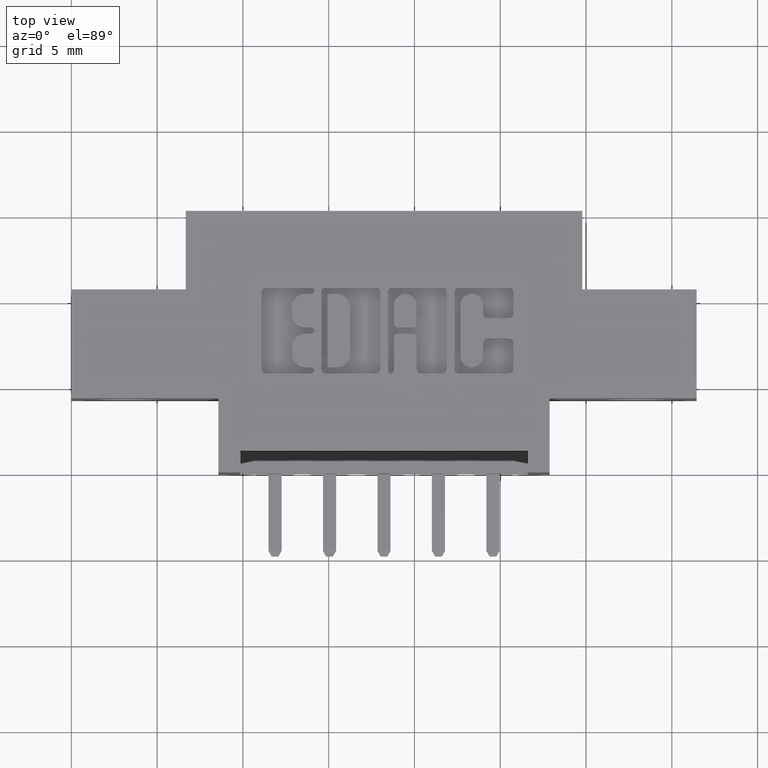
[diagram: clean part render]
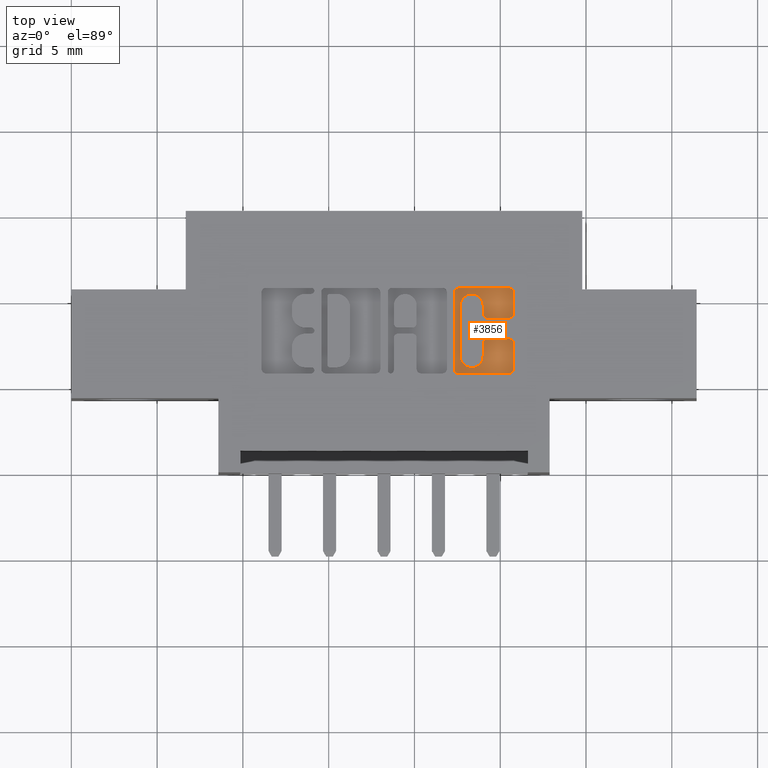
[diagram: same view with one face highlighted and labeled with its STEP entity id]
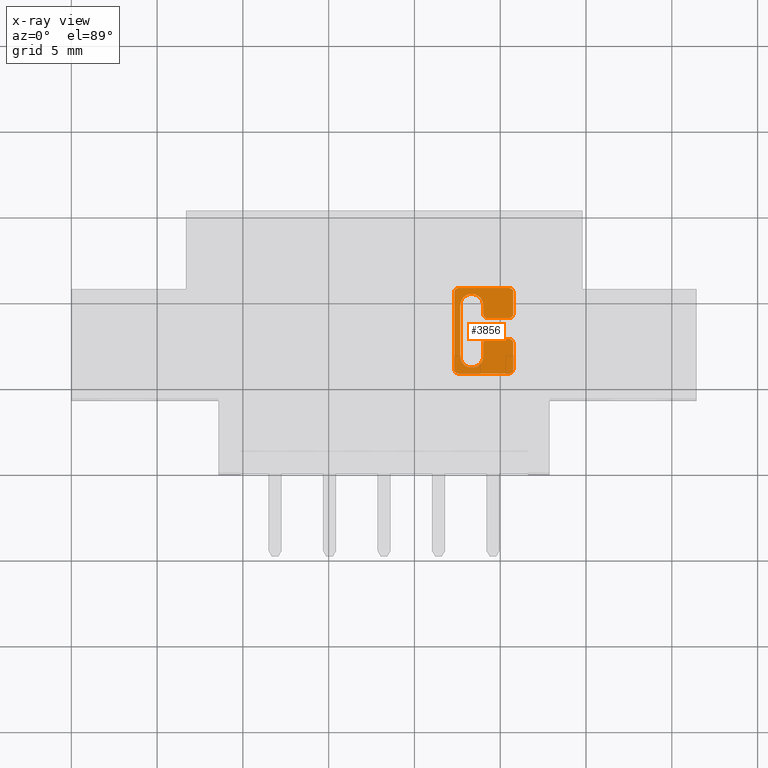
[diagram: x-ray of the same camera — body ghosted, the highlighted face saturated]
A machine part, top view. The second image highlights one B-rep face of the part: STEP entity #3856.
The next image is the same camera in x-ray: the body ghosted, the highlighted face saturated — about 0% of this face is hidden behind the body in this view.
In plain terms, the highlighted planar face has unit normal (0, 0, 1).
Its self-contained STEP definition (entity closure, byte-faithful):
#5 = DIRECTION ( 'NONE',  ( -0.0000000000000000000, 0.0000000000000000000, 1.000000000000000000 ) ) ;
#7 = ORIENTED_EDGE ( 'NONE', *, *, #873, .T. ) ;
#27 = CARTESIAN_POINT ( 'NONE',  ( 1.004362961706156687, 0.3063502266127573481, -0.01000000000000000021 ) ) ;
#36 = DIRECTION ( 'NONE',  ( -0.0000000000000000000, 0.0000000000000000000, 1.000000000000000000 ) ) ;
#45 = DIRECTION ( 'NONE',  ( -0.0000000000000000000, 0.0000000000000000000, 1.000000000000000000 ) ) ;
#63 = EDGE_CURVE ( 'NONE', #8338, #3215, #554, .T. ) ;
#123 = AXIS2_PLACEMENT_3D ( 'NONE', #8743, #36, #2972 ) ;
#143 = EDGE_CURVE ( 'NONE', #9423, #1539, #3089, .T. ) ;
#191 = CARTESIAN_POINT ( 'NONE',  ( 0.9547938271769774721, 0.3637718973050450000, -0.01000000000000000021 ) ) ;
#276 = LINE ( 'NONE', #858, #2595 ) ;
#335 = DIRECTION ( 'NONE',  ( 1.000000000000000000, 0.0000000000000000000, 0.0000000000000000000 ) ) ;
#366 = DIRECTION ( 'NONE',  ( -1.000000000000000000, 0.0000000000000000000, 0.0000000000000000000 ) ) ;
#446 = CIRCLE ( 'NONE', #123, 0.02625691779517367111 ) ;
#456 = CARTESIAN_POINT ( 'NONE',  ( 0.8924643213828185040, 0.0000000000000000000, -0.01000000000000000021 ) ) ;
#502 = EDGE_CURVE ( 'NONE', #9264, #4514, #6489, .T. ) ;
#517 = CARTESIAN_POINT ( 'NONE',  ( 0.0000000000000000000, 0.4231567020380508359, -0.01000000000000000021 ) ) ;
#546 = ORIENTED_EDGE ( 'NONE', *, *, #2263, .T. ) ;
#554 = LINE ( 'NONE', #2767, #5394 ) ;
#659 = ORIENTED_EDGE ( 'NONE', *, *, #3372, .T. ) ;
#761 = DIRECTION ( 'NONE',  ( 0.0000000000000000000, -1.000000000000000000, 0.0000000000000000000 ) ) ;
#808 = ORIENTED_EDGE ( 'NONE', *, *, #4297, .T. ) ;
#858 = CARTESIAN_POINT ( 'NONE',  ( 0.0000000000000000000, 0.3063502266127573481, -0.01000000000000000021 ) ) ;
#873 = EDGE_CURVE ( 'NONE', #2397, #1725, #9014, .T. ) ;
#934 = CARTESIAN_POINT ( 'NONE',  ( 1.014178631909972150, 0.3637718973050384497, -0.01000000000000000021 ) ) ;
#949 = DIRECTION ( 'NONE',  ( -1.000000000000000000, 0.0000000000000000000, 0.0000000000000000000 ) ) ;
#1036 = DIRECTION ( 'NONE',  ( 1.000000000000000000, 0.0000000000000000000, 0.0000000000000000000 ) ) ;
#1070 = DIRECTION ( 'NONE',  ( -0.0000000000000000000, 0.0000000000000000000, 1.000000000000000000 ) ) ;
#1111 = VECTOR ( 'NONE', #1036, 39.37007874015748143 ) ;
#1215 = AXIS2_PLACEMENT_3D ( 'NONE', #3023, #5, #6010 ) ;
#1271 = LINE ( 'NONE', #456, #7351 ) ;
#1353 = AXIS2_PLACEMENT_3D ( 'NONE', #191, #6003, #335 ) ;
#1482 = CARTESIAN_POINT ( 'NONE',  ( 0.9449781569731791064, 0.0000000000000000000, -0.01000000000000000021 ) ) ;
#1539 = VERTEX_POINT ( 'NONE', #7838 ) ;
#1544 = EDGE_CURVE ( 'NONE', #9423, #9283, #1271, .T. ) ;
#1567 = DIRECTION ( 'NONE',  ( -0.0000000000000000000, 0.0000000000000000000, 1.000000000000000000 ) ) ;
#1590 = ORIENTED_EDGE ( 'NONE', *, *, #8721, .T. ) ;
#1666 = VECTOR ( 'NONE', #761, 39.37007874015748143 ) ;
#1685 = ORIENTED_EDGE ( 'NONE', *, *, #63, .T. ) ;
#1701 = ORIENTED_EDGE ( 'NONE', *, *, #6577, .T. ) ;
#1725 = VERTEX_POINT ( 'NONE', #6890 ) ;
#1810 = VECTOR ( 'NONE', #5681, 39.37007874015748143 ) ;
#1828 = AXIS2_PLACEMENT_3D ( 'NONE', #8053, #6471, #7846 ) ;
#1885 = VERTEX_POINT ( 'NONE', #2612 ) ;
#1939 = LINE ( 'NONE', #8544, #7653 ) ;
#2012 = ORIENTED_EDGE ( 'NONE', *, *, #502, .T. ) ;
#2080 = DIRECTION ( 'NONE',  ( 1.000000000000000000, 0.0000000000000000000, 0.0000000000000000000 ) ) ;
#2180 = DIRECTION ( 'NONE',  ( -0.0000000000000000000, 0.0000000000000000000, 1.000000000000000000 ) ) ;
#2263 = EDGE_CURVE ( 'NONE', #3923, #2397, #9450, .T. ) ;
#2300 = VERTEX_POINT ( 'NONE', #27 ) ;
#2387 = CARTESIAN_POINT ( 'NONE',  ( 0.8787223830974586480, 0.0000000000000000000, -0.01000000000000000021 ) ) ;
#2397 = VERTEX_POINT ( 'NONE', #9058 ) ;
#2463 = ORIENTED_EDGE ( 'NONE', *, *, #8442, .T. ) ;
#2577 = ORIENTED_EDGE ( 'NONE', *, *, #4014, .T. ) ;
#2595 = VECTOR ( 'NONE', #949, 39.37007874015748143 ) ;
#2612 = CARTESIAN_POINT ( 'NONE',  ( 0.9547938271769671470, 0.3063502266127573481, -0.01000000000000000021 ) ) ;
#2767 = CARTESIAN_POINT ( 'NONE',  ( 0.0000000000000000000, 0.3539562271012334227, -0.01000000000000000021 ) ) ;
#2812 = AXIS2_PLACEMENT_3D ( 'NONE', #6977, #1070, #5515 ) ;
#2937 = AXIS2_PLACEMENT_3D ( 'NONE', #7777, #5651, #8646 ) ;
#2972 = DIRECTION ( 'NONE',  ( 1.000000000000000000, 0.0000000000000000000, 0.0000000000000000000 ) ) ;
#3023 = CARTESIAN_POINT ( 'NONE',  ( 1.004362961706134483, 0.2366589681657897681, -0.01000000000000000021 ) ) ;
#3089 = CIRCLE ( 'NONE', #2812, 0.02625691779518022489 ) ;
#3173 = VERTEX_POINT ( 'NONE', #9489 ) ;
#3192 = ORIENTED_EDGE ( 'NONE', *, *, #5715, .T. ) ;
#3215 = VERTEX_POINT ( 'NONE', #9531 ) ;
#3372 = EDGE_CURVE ( 'NONE', #5461, #3173, #4754, .T. ) ;
#3526 = EDGE_LOOP ( 'NONE', ( #1685, #4196, #2463, #2577, #3961, #546, #7, #7015, #659, #1701, #2012, #7200, #1590, #3192, #9030, #3882, #8415, #5668, #808, #8500 ) ) ;
#3777 = CIRCLE ( 'NONE', #5759, 0.009815670203787086462 ) ;
#3802 = DIRECTION ( 'NONE',  ( -0.0000000000000000000, 0.0000000000000000000, 1.000000000000000000 ) ) ;
#3856 = ADVANCED_FACE ( 'NONE', ( #8758 ), #8041, .T. ) ;
#3882 = ORIENTED_EDGE ( 'NONE', *, *, #143, .F. ) ;
#3923 = VERTEX_POINT ( 'NONE', #7509 ) ;
#3938 = EDGE_CURVE ( 'NONE', #4514, #2300, #3777, .T. ) ;
#3961 = ORIENTED_EDGE ( 'NONE', *, *, #9156, .T. ) ;
#4014 = EDGE_CURVE ( 'NONE', #9505, #6274, #5302, .T. ) ;
#4196 = ORIENTED_EDGE ( 'NONE', *, *, #4761, .T. ) ;
#4206 = DIRECTION ( 'NONE',  ( 0.0000000000000000000, 1.000000000000000000, -0.0000000000000000000 ) ) ;
#4297 = EDGE_CURVE ( 'NONE', #9293, #7510, #5871, .T. ) ;
#4310 = CARTESIAN_POINT ( 'NONE',  ( 0.8924643213828185040, 0.2668421540424528171, -0.01000000000000000021 ) ) ;
#4429 = VECTOR ( 'NONE', #366, 39.37007874015748143 ) ;
#4514 = VERTEX_POINT ( 'NONE', #4656 ) ;
#4525 = CARTESIAN_POINT ( 'NONE',  ( 0.9449781569731660058, 0.3831578454992597416, -0.01000000000000000021 ) ) ;
#4656 = CARTESIAN_POINT ( 'NONE',  ( 1.014178631909940176, 0.2965345564089702513, -0.01000000000000000021 ) ) ;
#4754 = LINE ( 'NONE', #6231, #1111 ) ;
#4761 = EDGE_CURVE ( 'NONE', #3215, #8226, #4983, .T. ) ;
#4983 = CIRCLE ( 'NONE', #8718, 0.009815670203804980135 ) ;
#5090 = DIRECTION ( 'NONE',  ( 1.000000000000000000, 0.0000000000000000000, 0.0000000000000000000 ) ) ;
#5300 = DIRECTION ( 'NONE',  ( 0.0000000000000000000, -1.000000000000000000, 0.0000000000000000000 ) ) ;
#5302 = CIRCLE ( 'NONE', #8432, 0.009815670203840083999 ) ;
#5340 = CARTESIAN_POINT ( 'NONE',  ( 1.014178631909940176, 0.0000000000000000000, -0.01000000000000000021 ) ) ;
#5370 = CARTESIAN_POINT ( 'NONE',  ( 0.9547938271769774721, 0.3539562271012334227, -0.01000000000000000021 ) ) ;
#5394 = VECTOR ( 'NONE', #8664, 39.37007874015748143 ) ;
#5461 = VERTEX_POINT ( 'NONE', #8709 ) ;
#5515 = DIRECTION ( 'NONE',  ( 1.000000000000000000, 0.0000000000000000000, 0.0000000000000000000 ) ) ;
#5651 = DIRECTION ( 'NONE',  ( -0.0000000000000000000, 0.0000000000000000000, 1.000000000000000000 ) ) ;
#5668 = ORIENTED_EDGE ( 'NONE', *, *, #8538, .F. ) ;
#5681 = DIRECTION ( 'NONE',  ( 0.0000000000000000000, -1.000000000000000000, 0.0000000000000000000 ) ) ;
#5715 = EDGE_CURVE ( 'NONE', #1885, #7789, #7538, .T. ) ;
#5745 = LINE ( 'NONE', #1482, #1666 ) ;
#5759 = AXIS2_PLACEMENT_3D ( 'NONE', #9286, #3802, #9247 ) ;
#5786 = DIRECTION ( 'NONE',  ( 1.000000000000000000, 0.0000000000000000000, 0.0000000000000000000 ) ) ;
#5871 = LINE ( 'NONE', #8873, #1810 ) ;
#5905 = DIRECTION ( 'NONE',  ( 1.000000000000000000, 0.0000000000000000000, 0.0000000000000000000 ) ) ;
#5985 = CARTESIAN_POINT ( 'NONE',  ( 0.8885380533012994242, 0.4133410318342099488, -0.01000000000000000021 ) ) ;
#6003 = DIRECTION ( 'NONE',  ( -0.0000000000000000000, 0.0000000000000000000, 1.000000000000000000 ) ) ;
#6010 = DIRECTION ( 'NONE',  ( 1.000000000000000000, 0.0000000000000000000, 0.0000000000000000000 ) ) ;
#6034 = AXIS2_PLACEMENT_3D ( 'NONE', #5985, #1567, #5786 ) ;
#6067 = VECTOR ( 'NONE', #5300, 39.37007874015748143 ) ;
#6231 = CARTESIAN_POINT ( 'NONE',  ( 0.0000000000000000000, 0.2268432979619829926, -0.01000000000000000021 ) ) ;
#6274 = VERTEX_POINT ( 'NONE', #7761 ) ;
#6281 = CIRCLE ( 'NONE', #1828, 0.009815670203806754757 ) ;
#6436 = CIRCLE ( 'NONE', #1353, 0.009815670203811535655 ) ;
#6453 = CARTESIAN_POINT ( 'NONE',  ( 1.004362961706167123, 0.3637718973050384497, -0.01000000000000000021 ) ) ;
#6471 = DIRECTION ( 'NONE',  ( -0.0000000000000000000, 0.0000000000000000000, 1.000000000000000000 ) ) ;
#6472 = CARTESIAN_POINT ( 'NONE',  ( 0.9449781569731660058, 0.3637718973050450000, -0.01000000000000000021 ) ) ;
#6489 = LINE ( 'NONE', #5340, #8063 ) ;
#6577 = EDGE_CURVE ( 'NONE', #3173, #9264, #9071, .T. ) ;
#6647 = CARTESIAN_POINT ( 'NONE',  ( 1.004362961706132040, 0.4133410318342107259, -0.01000000000000000021 ) ) ;
#6890 = CARTESIAN_POINT ( 'NONE',  ( 0.8787223830974586480, 0.2366589681657897681, -0.01000000000000000021 ) ) ;
#6977 = CARTESIAN_POINT ( 'NONE',  ( 0.9187212391779988607, 0.2668421540424528171, -0.01000000000000000021 ) ) ;
#7015 = ORIENTED_EDGE ( 'NONE', *, *, #7119, .T. ) ;
#7119 = EDGE_CURVE ( 'NONE', #1725, #5461, #6281, .T. ) ;
#7200 = ORIENTED_EDGE ( 'NONE', *, *, #3938, .T. ) ;
#7351 = VECTOR ( 'NONE', #4206, 39.37007874015748143 ) ;
#7509 = CARTESIAN_POINT ( 'NONE',  ( 0.8885380533012994242, 0.4231567020380508359, -0.01000000000000000021 ) ) ;
#7510 = VERTEX_POINT ( 'NONE', #6472 ) ;
#7538 = CIRCLE ( 'NONE', #2937, 0.009815670203788042295 ) ;
#7608 = CARTESIAN_POINT ( 'NONE',  ( 0.8924643213828185040, 0.3831578459575294415, -0.01000000000000000021 ) ) ;
#7653 = VECTOR ( 'NONE', #7693, 39.37007874015748143 ) ;
#7693 = DIRECTION ( 'NONE',  ( 0.0000000000000000000, 1.000000000000000000, -0.0000000000000000000 ) ) ;
#7755 = LINE ( 'NONE', #517, #4429 ) ;
#7761 = CARTESIAN_POINT ( 'NONE',  ( 1.004362961706168456, 0.4231567020380508359, -0.01000000000000000021 ) ) ;
#7777 = CARTESIAN_POINT ( 'NONE',  ( 0.9547938271769671470, 0.2965345564089693631, -0.01000000000000000021 ) ) ;
#7789 = VERTEX_POINT ( 'NONE', #9369 ) ;
#7838 = CARTESIAN_POINT ( 'NONE',  ( 0.9449781569731791064, 0.2668421540424528171, -0.01000000000000000021 ) ) ;
#7846 = DIRECTION ( 'NONE',  ( 1.000000000000000000, 0.0000000000000000000, 0.0000000000000000000 ) ) ;
#8041 = PLANE ( 'NONE',  #9031 ) ;
#8052 = CARTESIAN_POINT ( 'NONE',  ( 1.014178631909940176, 0.2366589681657828015, -0.01000000000000000021 ) ) ;
#8053 = CARTESIAN_POINT ( 'NONE',  ( 0.8885380533012654514, 0.2366589681657897681, -0.01000000000000000021 ) ) ;
#8063 = VECTOR ( 'NONE', #8310, 39.37007874015748143 ) ;
#8226 = VERTEX_POINT ( 'NONE', #934 ) ;
#8310 = DIRECTION ( 'NONE',  ( 0.0000000000000000000, 1.000000000000000000, -0.0000000000000000000 ) ) ;
#8316 = EDGE_CURVE ( 'NONE', #7510, #8338, #6436, .T. ) ;
#8338 = VERTEX_POINT ( 'NONE', #5370 ) ;
#8415 = ORIENTED_EDGE ( 'NONE', *, *, #1544, .T. ) ;
#8432 = AXIS2_PLACEMENT_3D ( 'NONE', #6647, #45, #5905 ) ;
#8442 = EDGE_CURVE ( 'NONE', #8226, #9505, #1939, .T. ) ;
#8500 = ORIENTED_EDGE ( 'NONE', *, *, #8316, .T. ) ;
#8532 = EDGE_CURVE ( 'NONE', #7789, #1539, #5745, .T. ) ;
#8538 = EDGE_CURVE ( 'NONE', #9293, #9283, #446, .T. ) ;
#8544 = CARTESIAN_POINT ( 'NONE',  ( 1.014178631909972150, 0.0000000000000000000, -0.01000000000000000021 ) ) ;
#8646 = DIRECTION ( 'NONE',  ( 1.000000000000000000, 0.0000000000000000000, 0.0000000000000000000 ) ) ;
#8664 = DIRECTION ( 'NONE',  ( 1.000000000000000000, 0.0000000000000000000, 0.0000000000000000000 ) ) ;
#8709 = CARTESIAN_POINT ( 'NONE',  ( 0.8885380533012654514, 0.2268432979619829926, -0.01000000000000000021 ) ) ;
#8718 = AXIS2_PLACEMENT_3D ( 'NONE', #6453, #9410, #2080 ) ;
#8721 = EDGE_CURVE ( 'NONE', #2300, #1885, #276, .T. ) ;
#8743 = CARTESIAN_POINT ( 'NONE',  ( 0.9187212391779923104, 0.3831578459575294415, -0.01000000000000000021 ) ) ;
#8758 = FACE_OUTER_BOUND ( 'NONE', #3526, .T. ) ;
#8814 = CARTESIAN_POINT ( 'NONE',  ( 0.0000000000000000000, 0.0000000000000000000, -0.01000000000000000021 ) ) ;
#8873 = CARTESIAN_POINT ( 'NONE',  ( 0.9449781569731660058, 0.0000000000000000000, -0.01000000000000000021 ) ) ;
#9008 = CARTESIAN_POINT ( 'NONE',  ( 1.014178631909972150, 0.4133410318341946277, -0.01000000000000000021 ) ) ;
#9014 = LINE ( 'NONE', #2387, #6067 ) ;
#9030 = ORIENTED_EDGE ( 'NONE', *, *, #8532, .T. ) ;
#9031 = AXIS2_PLACEMENT_3D ( 'NONE', #8814, #2180, #5090 ) ;
#9058 = CARTESIAN_POINT ( 'NONE',  ( 0.8787223830974586480, 0.4133410318342099488, -0.01000000000000000021 ) ) ;
#9071 = CIRCLE ( 'NONE', #1215, 0.009815670203806345362 ) ;
#9156 = EDGE_CURVE ( 'NONE', #6274, #3923, #7755, .T. ) ;
#9247 = DIRECTION ( 'NONE',  ( 1.000000000000000000, 0.0000000000000000000, 0.0000000000000000000 ) ) ;
#9264 = VERTEX_POINT ( 'NONE', #8052 ) ;
#9283 = VERTEX_POINT ( 'NONE', #7608 ) ;
#9286 = CARTESIAN_POINT ( 'NONE',  ( 1.004362961706153135, 0.2965345564089702513, -0.01000000000000000021 ) ) ;
#9293 = VERTEX_POINT ( 'NONE', #4525 ) ;
#9369 = CARTESIAN_POINT ( 'NONE',  ( 0.9449781569731791064, 0.2965345564089684749, -0.01000000000000000021 ) ) ;
#9410 = DIRECTION ( 'NONE',  ( -0.0000000000000000000, 0.0000000000000000000, 1.000000000000000000 ) ) ;
#9423 = VERTEX_POINT ( 'NONE', #4310 ) ;
#9450 = CIRCLE ( 'NONE', #6034, 0.009815670203840767480 ) ;
#9489 = CARTESIAN_POINT ( 'NONE',  ( 1.004362961706134483, 0.2268432979619829926, -0.01000000000000000021 ) ) ;
#9505 = VERTEX_POINT ( 'NONE', #9008 ) ;
#9531 = CARTESIAN_POINT ( 'NONE',  ( 1.004362961706167123, 0.3539562271012334227, -0.01000000000000000021 ) ) ;